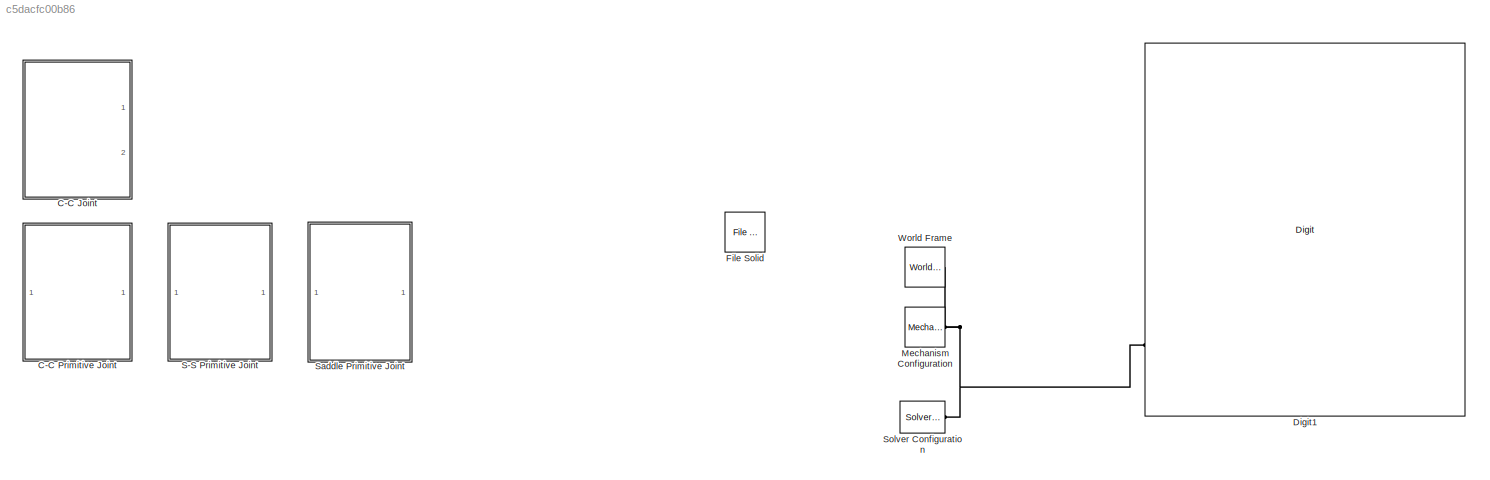
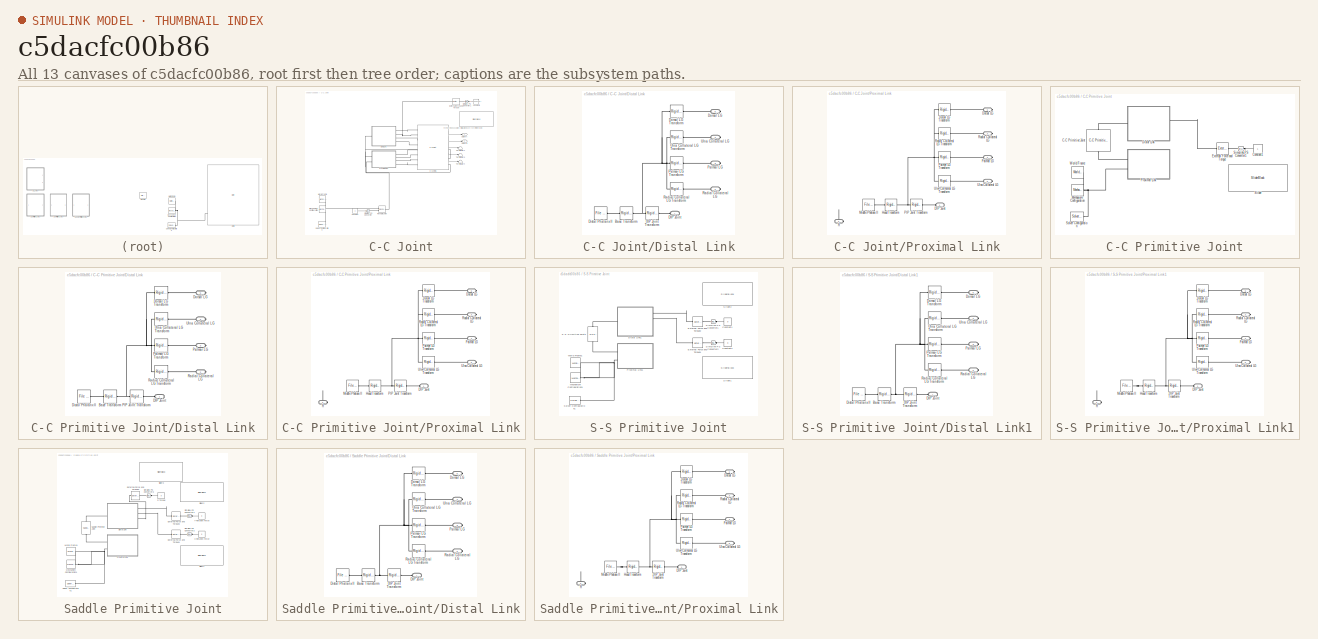
[diagram: thumbnail index - all 13 canvases of the model, root first then tree order]
MODEL slx_c5dacfc00b86
KIND model
CONFIG AbsTol = auto
CONFIG EnableMultiTasking = off
CONFIG FixedStep = auto
CONFIG MaxStep = auto
CONFIG MinStep = auto
CONFIG RelTol = 1e-3
CONFIG SampleTimeConstraint = Unconstrained
CONFIG SolverName = daessc
CONFIG StartTime = 0.0
CONFIG StopTime = 50
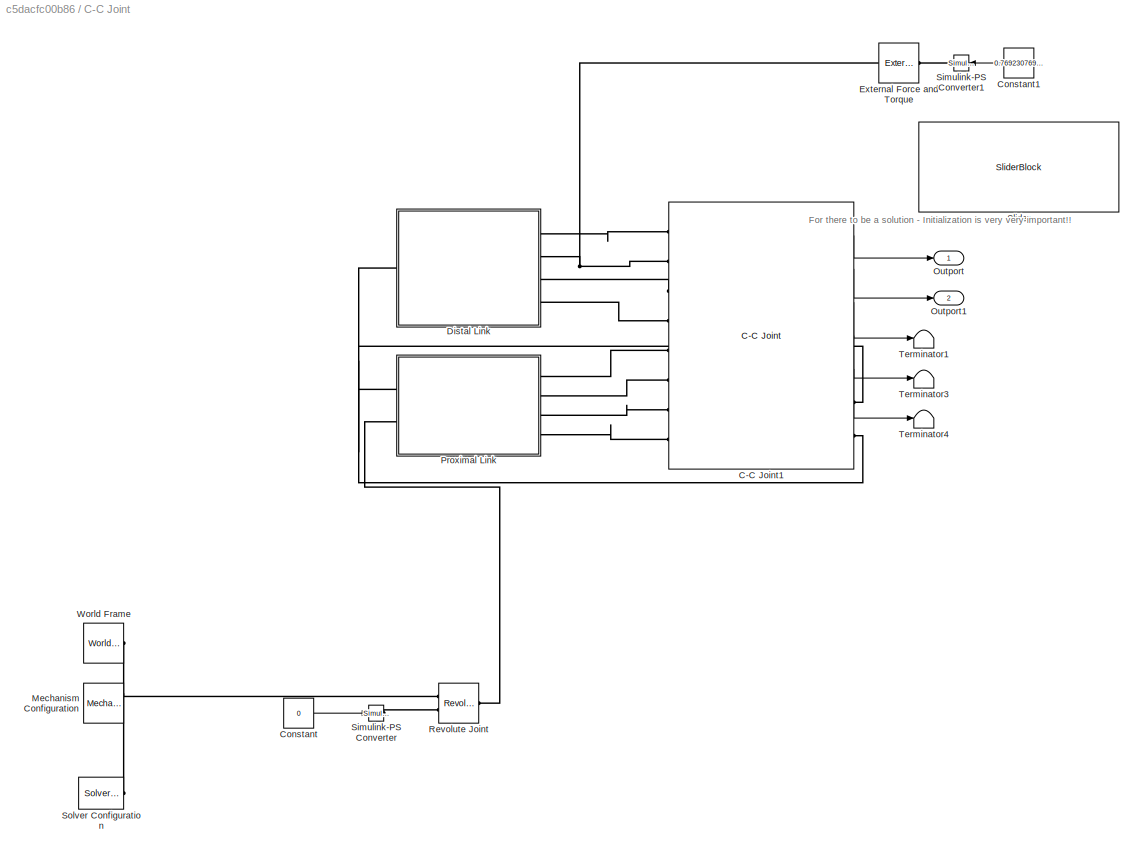
BLOCK [SubSystem] C-C Joint
  Commented = on
  Ports = [0, 2]
  RequestExecContextInheritance = off
BLOCK [Reference] C-C Joint/C-C Joint1  REF=mesh_assembly_library/C-C Joint  (lib defined in slx_494895e53eb4)
  Ports = [0, 5, 0, 0, 0, 8, 2]
  SourceBlock = mesh_assembly_library/C-C Joint
  SourceType = Cylinder in Cylinder - DARM IP Joint
BLOCK [Constant] C-C Joint/Constant
  Value = 0
BLOCK [Constant] C-C Joint/Constant1
  Value = 0.7692307692307692
BLOCK [SubSystem] C-C Joint/Distal Link
  Ports = [0, 0, 0, 0, 0, 1, 4]
  RequestExecContextInheritance = off
BLOCK [Reference] C-C Joint/Distal Link/Base Transform  REF=sm_lib/Frames and
Transforms/Rigid
Transform
  Ports = [0, 0, 0, 0, 0, 1, 1]
  SourceBlock = sm_lib/Frames and\nTransforms/Rigid\nTransform
  SourceProductBaseCode = MS
  SourceType = Rigid\nTransform
BLOCK [PMIOPort] C-C Joint/Distal Link/DIP Joint
  Side = Left
BLOCK [Reference] C-C Joint/Distal Link/DIP Joint Transform  REF=sm_lib/Frames and
Transforms/Rigid
Transform
  Ports = [0, 0, 0, 0, 0, 1, 1]
  SourceBlock = sm_lib/Frames and\nTransforms/Rigid\nTransform
  SourceProductBaseCode = MS
  SourceType = Rigid\nTransform
BLOCK [Reference] C-C Joint/Distal Link/Distal Phalanx II  REF=sm_lib/Body Elements/File Solid
  Ports = [0, 0, 0, 0, 0, 1, 1]
  SourceBlock = sm_lib/Body Elements/File Solid
  SourceProductBaseCode = MS
  SourceType = File Solid
BLOCK [PMIOPort] C-C Joint/Distal Link/Dorsal LG
  Port = 5
  Side = Right
BLOCK [Reference] C-C Joint/Distal Link/Dorsal LG Transform  REF=sm_lib/Frames and
Transforms/Rigid
Transform
  Ports = [0, 0, 0, 0, 0, 1, 1]
  SourceBlock = sm_lib/Frames and\nTransforms/Rigid\nTransform
  SourceProductBaseCode = MS
  SourceType = Rigid\nTransform
BLOCK [PMIOPort] C-C Joint/Distal Link/Palmar LG
  Port = 3
  Side = Right
BLOCK [Reference] C-C Joint/Distal Link/Palmar LG Transform  REF=sm_lib/Frames and
Transforms/Rigid
Transform
  Ports = [0, 0, 0, 0, 0, 1, 1]
  SourceBlock = sm_lib/Frames and\nTransforms/Rigid\nTransform
  SourceProductBaseCode = MS
  SourceType = Rigid\nTransform
BLOCK [PMIOPort] C-C Joint/Distal Link/Radial Collateral LG
  Port = 2
  Side = Right
BLOCK [Reference] C-C Joint/Distal Link/Radial Collateral LG Transform  REF=sm_lib/Frames and
Transforms/Rigid
Transform
  Ports = [0, 0, 0, 0, 0, 1, 1]
  SourceBlock = sm_lib/Frames and\nTransforms/Rigid\nTransform
  SourceProductBaseCode = MS
  SourceType = Rigid\nTransform
BLOCK [PMIOPort] C-C Joint/Distal Link/Ulna Collateral LG
  Port = 4
  Side = Right
BLOCK [Reference] C-C Joint/Distal Link/Ulna Collateral LG Transform  REF=sm_lib/Frames and
Transforms/Rigid
Transform
  Ports = [0, 0, 0, 0, 0, 1, 1]
  SourceBlock = sm_lib/Frames and\nTransforms/Rigid\nTransform
  SourceProductBaseCode = MS
  SourceType = Rigid\nTransform
BLOCK [Reference] C-C Joint/External Force and Torque  REF=sm_lib/Forces and
Torques/External Force
and Torque
  Ports = [0, 0, 0, 0, 0, 1, 1]
  SourceBlock = sm_lib/Forces and\nTorques/External Force\nand Torque
  SourceProductBaseCode = MS
  SourceType = External Force\nand Torque
BLOCK [Reference] C-C Joint/Mechanism Configuration  REF=sm_lib/Utilities/Mechanism
Configuration
  Ports = [0, 0, 0, 0, 0, 0, 1]
  SourceBlock = sm_lib/Utilities/Mechanism\nConfiguration
  SourceProductBaseCode = MS
  SourceType = Mechanism\nConfiguration
BLOCK [Outport] C-C Joint/Outport
BLOCK [Outport] C-C Joint/Outport1
  Port = 2
BLOCK [SubSystem] C-C Joint/Proximal Link
  Ports = [0, 0, 0, 0, 0, 2, 4]
  RequestExecContextInheritance = off
BLOCK [PMIOPort] C-C Joint/Proximal Link/DIP Joint
  Side = Left
BLOCK [PMIOPort] C-C Joint/Proximal Link/Dorsal LG
  Port = 6
  Side = Right
BLOCK [Reference] C-C Joint/Proximal Link/Dorsal LG Transform  REF=sm_lib/Frames and
Transforms/Rigid
Transform
  Ports = [0, 0, 0, 0, 0, 1, 1]
  SourceBlock = sm_lib/Frames and\nTransforms/Rigid\nTransform
  SourceProductBaseCode = MS
  SourceType = Rigid\nTransform
BLOCK [Reference] C-C Joint/Proximal Link/Head Transform  REF=sm_lib/Frames and
Transforms/Rigid
Transform
  Ports = [0, 0, 0, 0, 0, 1, 1]
  SourceBlock = sm_lib/Frames and\nTransforms/Rigid\nTransform
  SourceProductBaseCode = MS
  SourceType = Rigid\nTransform
BLOCK [Reference] C-C Joint/Proximal Link/Middle Phalanx II  REF=sm_lib/Body Elements/File Solid
  Ports = [0, 0, 0, 0, 0, 1, 1]
  SourceBlock = sm_lib/Body Elements/File Solid
  SourceProductBaseCode = MS
  SourceType = File Solid
BLOCK [Reference] C-C Joint/Proximal Link/PIP Joint Transform  REF=sm_lib/Frames and
Transforms/Rigid
Transform
  Ports = [0, 0, 0, 0, 0, 1, 1]
  SourceBlock = sm_lib/Frames and\nTransforms/Rigid\nTransform
  SourceProductBaseCode = MS
  SourceType = Rigid\nTransform
BLOCK [PMIOPort] C-C Joint/Proximal Link/Palmar LG
  Port = 4
  Side = Right
BLOCK [Reference] C-C Joint/Proximal Link/Palmar LG Transform  REF=sm_lib/Frames and
Transforms/Rigid
Transform
  Ports = [0, 0, 0, 0, 0, 1, 1]
  SourceBlock = sm_lib/Frames and\nTransforms/Rigid\nTransform
  SourceProductBaseCode = MS
  SourceType = Rigid\nTransform
BLOCK [PMIOPort] C-C Joint/Proximal Link/R
  Port = 2
  Side = Left
BLOCK [PMIOPort] C-C Joint/Proximal Link/Radial Collateral LG
  Port = 3
  Side = Right
BLOCK [Reference] C-C Joint/Proximal Link/Radial Collateral LG Transform  REF=sm_lib/Frames and
Transforms/Rigid
Transform
  Ports = [0, 0, 0, 0, 0, 1, 1]
  SourceBlock = sm_lib/Frames and\nTransforms/Rigid\nTransform
  SourceProductBaseCode = MS
  SourceType = Rigid\nTransform
BLOCK [PMIOPort] C-C Joint/Proximal Link/Ulna Collateral LG
  Port = 5
  Side = Right
BLOCK [Reference] C-C Joint/Proximal Link/Ulna Collateral LG Transform  REF=sm_lib/Frames and
Transforms/Rigid
Transform
  Ports = [0, 0, 0, 0, 0, 1, 1]
  SourceBlock = sm_lib/Frames and\nTransforms/Rigid\nTransform
  SourceProductBaseCode = MS
  SourceType = Rigid\nTransform
BLOCK [Reference] C-C Joint/Revolute Joint  REF=sm_lib/Joints/Revolute Joint
  Ports = [0, 0, 0, 0, 0, 2, 1]
  SourceBlock = sm_lib/Joints/Revolute Joint
  SourceProductBaseCode = MS
  SourceType = Revolute Joint
BLOCK [Reference] C-C Joint/Simulink-PS Converter  REF=nesl_utility/Simulink-PS
Converter
  Ports = [1, 0, 0, 0, 0, 0, 1]
  SourceBlock = nesl_utility/Simulink-PS\nConverter
  SourceProductBaseCode = PW,SS
  SourceType = Simulink-PS\nConverter
BLOCK [Reference] C-C Joint/Simulink-PS Converter1  REF=nesl_utility/Simulink-PS
Converter
  Ports = [1, 0, 0, 0, 0, 0, 1]
  SourceBlock = nesl_utility/Simulink-PS\nConverter
  SourceProductBaseCode = PW,SS
  SourceType = Simulink-PS\nConverter
BLOCK [SliderBlock] C-C Joint/Slider
  ScaleMax = 1
  ScaleMin = -5
BLOCK [Reference] C-C Joint/Solver Configuration  REF=nesl_utility/Solver
Configuration
  Ports = [0, 0, 0, 0, 0, 0, 1]
  SourceBlock = nesl_utility/Solver\nConfiguration
  SourceProductBaseCode = PW,SS
  SourceType = Solver\nConfiguration
BLOCK [Terminator] C-C Joint/Terminator1
BLOCK [Terminator] C-C Joint/Terminator3
BLOCK [Terminator] C-C Joint/Terminator4
BLOCK [Reference] C-C Joint/World Frame  REF=sm_lib/Frames and
Transforms/World Frame
  Ports = [0, 0, 0, 0, 0, 0, 1]
  SourceBlock = sm_lib/Frames and\nTransforms/World Frame
  SourceProductBaseCode = MS
  SourceType = World Frame
BLOCK [SubSystem] C-C Primitive Joint
  Commented = on
  Ports = []
  RequestExecContextInheritance = off
BLOCK [Reference] C-C Primitive Joint/C-C Primitive Joint   REF=mechanics_model_library/C-C Primitive Joint
  NameLocation = left
  Ports = [0, 0, 0, 0, 0, 1, 1]
  SourceBlock = mechanics_model_library/C-C Primitive Joint
BLOCK [Constant] C-C Primitive Joint/Constant1
BLOCK [SubSystem] C-C Primitive Joint/Distal Link
  Ports = [0, 0, 0, 0, 0, 1, 4]
  RequestExecContextInheritance = off
BLOCK [Reference] C-C Primitive Joint/Distal Link/Base Transform  REF=sm_lib/Frames and
Transforms/Rigid
Transform
  Ports = [0, 0, 0, 0, 0, 1, 1]
  SourceBlock = sm_lib/Frames and\nTransforms/Rigid\nTransform
  SourceProductBaseCode = MS
  SourceType = Rigid\nTransform
BLOCK [PMIOPort] C-C Primitive Joint/Distal Link/DIP Joint
  Side = Left
BLOCK [Reference] C-C Primitive Joint/Distal Link/Distal Phalanx II  REF=sm_lib/Body Elements/File Solid
  Ports = [0, 0, 0, 0, 0, 1, 1]
  SourceBlock = sm_lib/Body Elements/File Solid
  SourceProductBaseCode = MS
  SourceType = File Solid
BLOCK [PMIOPort] C-C Primitive Joint/Distal Link/Dorsal LG
  Port = 5
  Side = Right
BLOCK [Reference] C-C Primitive Joint/Distal Link/Dorsal LG Transform  REF=sm_lib/Frames and
Transforms/Rigid
Transform
  Ports = [0, 0, 0, 0, 0, 1, 1]
  SourceBlock = sm_lib/Frames and\nTransforms/Rigid\nTransform
  SourceProductBaseCode = MS
  SourceType = Rigid\nTransform
BLOCK [Reference] C-C Primitive Joint/Distal Link/PIP Joint Transform  REF=sm_lib/Frames and
Transforms/Rigid
Transform
  Ports = [0, 0, 0, 0, 0, 1, 1]
  SourceBlock = sm_lib/Frames and\nTransforms/Rigid\nTransform
  SourceProductBaseCode = MS
  SourceType = Rigid\nTransform
BLOCK [PMIOPort] C-C Primitive Joint/Distal Link/Palmar LG
  Port = 3
  Side = Right
BLOCK [Reference] C-C Primitive Joint/Distal Link/Palmar LG Transform  REF=sm_lib/Frames and
Transforms/Rigid
Transform
  Ports = [0, 0, 0, 0, 0, 1, 1]
  SourceBlock = sm_lib/Frames and\nTransforms/Rigid\nTransform
  SourceProductBaseCode = MS
  SourceType = Rigid\nTransform
BLOCK [PMIOPort] C-C Primitive Joint/Distal Link/Radial Collateral LG
  Port = 2
  Side = Right
BLOCK [Reference] C-C Primitive Joint/Distal Link/Radial Collateral LG Transform  REF=sm_lib/Frames and
Transforms/Rigid
Transform
  Ports = [0, 0, 0, 0, 0, 1, 1]
  SourceBlock = sm_lib/Frames and\nTransforms/Rigid\nTransform
  SourceProductBaseCode = MS
  SourceType = Rigid\nTransform
BLOCK [PMIOPort] C-C Primitive Joint/Distal Link/Ulna Collateral LG
  Port = 4
  Side = Right
BLOCK [Reference] C-C Primitive Joint/Distal Link/Ulna Collateral LG Transform  REF=sm_lib/Frames and
Transforms/Rigid
Transform
  Ports = [0, 0, 0, 0, 0, 1, 1]
  SourceBlock = sm_lib/Frames and\nTransforms/Rigid\nTransform
  SourceProductBaseCode = MS
  SourceType = Rigid\nTransform
BLOCK [Reference] C-C Primitive Joint/External Force and Torque  REF=sm_lib/Forces and
Torques/External Force
and Torque
  Ports = [0, 0, 0, 0, 0, 1, 1]
  SourceBlock = sm_lib/Forces and\nTorques/External Force\nand Torque
  SourceProductBaseCode = MS
  SourceType = External Force\nand Torque
BLOCK [Reference] C-C Primitive Joint/Mechanism Configuration  REF=sm_lib/Utilities/Mechanism
Configuration
  Ports = [0, 0, 0, 0, 0, 0, 1]
  SourceBlock = sm_lib/Utilities/Mechanism\nConfiguration
  SourceProductBaseCode = MS
  SourceType = Mechanism\nConfiguration
BLOCK [SubSystem] C-C Primitive Joint/Proximal Link
  Ports = [0, 0, 0, 0, 0, 2, 4]
  RequestExecContextInheritance = off
BLOCK [PMIOPort] C-C Primitive Joint/Proximal Link/DIP Joint
  Side = Left
BLOCK [PMIOPort] C-C Primitive Joint/Proximal Link/Dorsal LG
  Port = 6
  Side = Right
BLOCK [Reference] C-C Primitive Joint/Proximal Link/Dorsal LG Transform  REF=sm_lib/Frames and
Transforms/Rigid
Transform
  Ports = [0, 0, 0, 0, 0, 1, 1]
  SourceBlock = sm_lib/Frames and\nTransforms/Rigid\nTransform
  SourceProductBaseCode = MS
  SourceType = Rigid\nTransform
BLOCK [Reference] C-C Primitive Joint/Proximal Link/Head Transform  REF=sm_lib/Frames and
Transforms/Rigid
Transform
  Ports = [0, 0, 0, 0, 0, 1, 1]
  SourceBlock = sm_lib/Frames and\nTransforms/Rigid\nTransform
  SourceProductBaseCode = MS
  SourceType = Rigid\nTransform
BLOCK [Reference] C-C Primitive Joint/Proximal Link/Middle Phalanx II  REF=sm_lib/Body Elements/File Solid
  Ports = [0, 0, 0, 0, 0, 1, 1]
  SourceBlock = sm_lib/Body Elements/File Solid
  SourceProductBaseCode = MS
  SourceType = File Solid
BLOCK [Reference] C-C Primitive Joint/Proximal Link/PIP Joint Transform  REF=sm_lib/Frames and
Transforms/Rigid
Transform
  Ports = [0, 0, 0, 0, 0, 1, 1]
  SourceBlock = sm_lib/Frames and\nTransforms/Rigid\nTransform
  SourceProductBaseCode = MS
  SourceType = Rigid\nTransform
BLOCK [PMIOPort] C-C Primitive Joint/Proximal Link/Palmar LG
  Port = 4
  Side = Right
BLOCK [Reference] C-C Primitive Joint/Proximal Link/Palmar LG Transform  REF=sm_lib/Frames and
Transforms/Rigid
Transform
  Ports = [0, 0, 0, 0, 0, 1, 1]
  SourceBlock = sm_lib/Frames and\nTransforms/Rigid\nTransform
  SourceProductBaseCode = MS
  SourceType = Rigid\nTransform
BLOCK [PMIOPort] C-C Primitive Joint/Proximal Link/R
  Port = 2
  Side = Left
BLOCK [PMIOPort] C-C Primitive Joint/Proximal Link/Radial Collateral LG
  Port = 3
  Side = Right
BLOCK [Reference] C-C Primitive Joint/Proximal Link/Radial Collateral LG Transform  REF=sm_lib/Frames and
Transforms/Rigid
Transform
  Ports = [0, 0, 0, 0, 0, 1, 1]
  SourceBlock = sm_lib/Frames and\nTransforms/Rigid\nTransform
  SourceProductBaseCode = MS
  SourceType = Rigid\nTransform
BLOCK [PMIOPort] C-C Primitive Joint/Proximal Link/Ulna Collateral LG
  Port = 5
  Side = Right
BLOCK [Reference] C-C Primitive Joint/Proximal Link/Ulna Collateral LG Transform  REF=sm_lib/Frames and
Transforms/Rigid
Transform
  Ports = [0, 0, 0, 0, 0, 1, 1]
  SourceBlock = sm_lib/Frames and\nTransforms/Rigid\nTransform
  SourceProductBaseCode = MS
  SourceType = Rigid\nTransform
BLOCK [Reference] C-C Primitive Joint/Simulink-PS Converter1  REF=nesl_utility/Simulink-PS
Converter
  Ports = [1, 0, 0, 0, 0, 0, 1]
  SourceBlock = nesl_utility/Simulink-PS\nConverter
  SourceProductBaseCode = PW,SS
  SourceType = Simulink-PS\nConverter
BLOCK [SliderBlock] C-C Primitive Joint/Slider
  ScaleMax = 1
  ScaleMin = -5
BLOCK [Reference] C-C Primitive Joint/Solver Configuration  REF=nesl_utility/Solver
Configuration
  Ports = [0, 0, 0, 0, 0, 0, 1]
  SourceBlock = nesl_utility/Solver\nConfiguration
  SourceProductBaseCode = PW,SS
  SourceType = Solver\nConfiguration
BLOCK [Reference] C-C Primitive Joint/World Frame  REF=sm_lib/Frames and
Transforms/World Frame
  Ports = [0, 0, 0, 0, 0, 0, 1]
  SourceBlock = sm_lib/Frames and\nTransforms/World Frame
  SourceProductBaseCode = MS
  SourceType = World Frame
BLOCK [Reference] Digit1  REF=mesh_assembly_library/Digit  (lib defined in slx_494895e53eb4)
  Ports = [0, 0, 0, 0, 0, 20]
  SourceBlock = mesh_assembly_library/Digit
BLOCK [Reference] File Solid  REF=sm_lib/Body Elements/File Solid
  Commented = on
  Ports = [0, 0, 0, 0, 0, 0, 1]
  SourceBlock = sm_lib/Body Elements/File Solid
  SourceProductBaseCode = MS
  SourceType = File Solid
BLOCK [Reference] Mechanism Configuration  REF=sm_lib/Utilities/Mechanism
Configuration
  Ports = [0, 0, 0, 0, 0, 0, 1]
  SourceBlock = sm_lib/Utilities/Mechanism\nConfiguration
  SourceProductBaseCode = MS
  SourceType = Mechanism\nConfiguration
BLOCK [SubSystem] S-S Primitive Joint
  Commented = on
  Ports = []
  RequestExecContextInheritance = off
BLOCK [Constant] S-S Primitive Joint/Constant1
  Value = 0
BLOCK [Constant] S-S Primitive Joint/Constant2
  Value = 0
BLOCK [SubSystem] S-S Primitive Joint/Distal Link1
  Ports = [0, 0, 0, 0, 0, 1, 4]
  RequestExecContextInheritance = off
BLOCK [Reference] S-S Primitive Joint/Distal Link1/Base Transform  REF=sm_lib/Frames and
Transforms/Rigid
Transform
  Ports = [0, 0, 0, 0, 0, 1, 1]
  SourceBlock = sm_lib/Frames and\nTransforms/Rigid\nTransform
  SourceProductBaseCode = MS
  SourceType = Rigid\nTransform
BLOCK [PMIOPort] S-S Primitive Joint/Distal Link1/DIP Joint
  Side = Left
BLOCK [Reference] S-S Primitive Joint/Distal Link1/DIP Joint Transform  REF=sm_lib/Frames and
Transforms/Rigid
Transform
  Ports = [0, 0, 0, 0, 0, 1, 1]
  SourceBlock = sm_lib/Frames and\nTransforms/Rigid\nTransform
  SourceProductBaseCode = MS
  SourceType = Rigid\nTransform
BLOCK [Reference] S-S Primitive Joint/Distal Link1/Distal Phalanx II  REF=sm_lib/Body Elements/File Solid
  Ports = [0, 0, 0, 0, 0, 1, 1]
  SourceBlock = sm_lib/Body Elements/File Solid
  SourceProductBaseCode = MS
  SourceType = File Solid
BLOCK [PMIOPort] S-S Primitive Joint/Distal Link1/Dorsal LG
  Port = 5
  Side = Right
BLOCK [Reference] S-S Primitive Joint/Distal Link1/Dorsal LG Transform  REF=sm_lib/Frames and
Transforms/Rigid
Transform
  Ports = [0, 0, 0, 0, 0, 1, 1]
  SourceBlock = sm_lib/Frames and\nTransforms/Rigid\nTransform
  SourceProductBaseCode = MS
  SourceType = Rigid\nTransform
BLOCK [PMIOPort] S-S Primitive Joint/Distal Link1/Palmar LG
  Port = 3
  Side = Right
BLOCK [Reference] S-S Primitive Joint/Distal Link1/Palmar LG Transform  REF=sm_lib/Frames and
Transforms/Rigid
Transform
  Ports = [0, 0, 0, 0, 0, 1, 1]
  SourceBlock = sm_lib/Frames and\nTransforms/Rigid\nTransform
  SourceProductBaseCode = MS
  SourceType = Rigid\nTransform
BLOCK [PMIOPort] S-S Primitive Joint/Distal Link1/Radial Collateral LG
  Port = 2
  Side = Right
BLOCK [Reference] S-S Primitive Joint/Distal Link1/Radial Collateral LG Transform  REF=sm_lib/Frames and
Transforms/Rigid
Transform
  Ports = [0, 0, 0, 0, 0, 1, 1]
  SourceBlock = sm_lib/Frames and\nTransforms/Rigid\nTransform
  SourceProductBaseCode = MS
  SourceType = Rigid\nTransform
BLOCK [PMIOPort] S-S Primitive Joint/Distal Link1/Ulna Collateral LG
  Port = 4
  Side = Right
BLOCK [Reference] S-S Primitive Joint/Distal Link1/Ulna Collateral LG Transform  REF=sm_lib/Frames and
Transforms/Rigid
Transform
  Ports = [0, 0, 0, 0, 0, 1, 1]
  SourceBlock = sm_lib/Frames and\nTransforms/Rigid\nTransform
  SourceProductBaseCode = MS
  SourceType = Rigid\nTransform
BLOCK [Reference] S-S Primitive Joint/External Force and Torque1  REF=sm_lib/Forces and
Torques/External Force
and Torque
  Ports = [0, 0, 0, 0, 0, 1, 1]
  SourceBlock = sm_lib/Forces and\nTorques/External Force\nand Torque
  SourceProductBaseCode = MS
  SourceType = External Force\nand Torque
BLOCK [Reference] S-S Primitive Joint/External Force and Torque2  REF=sm_lib/Forces and
Torques/External Force
and Torque
  Ports = [0, 0, 0, 0, 0, 1, 1]
  SourceBlock = sm_lib/Forces and\nTorques/External Force\nand Torque
  SourceProductBaseCode = MS
  SourceType = External Force\nand Torque
BLOCK [Reference] S-S Primitive Joint/Mechanism Configuration1  REF=sm_lib/Utilities/Mechanism
Configuration
  Ports = [0, 0, 0, 0, 0, 0, 1]
  SourceBlock = sm_lib/Utilities/Mechanism\nConfiguration
  SourceProductBaseCode = MS
  SourceType = Mechanism\nConfiguration
BLOCK [SubSystem] S-S Primitive Joint/Proximal Link1
  Ports = [0, 0, 0, 0, 0, 2, 4]
  RequestExecContextInheritance = off
BLOCK [PMIOPort] S-S Primitive Joint/Proximal Link1/DIP Joint
  Side = Left
BLOCK [Reference] S-S Primitive Joint/Proximal Link1/DIP Joint Transform  REF=sm_lib/Frames and
Transforms/Rigid
Transform
  Ports = [0, 0, 0, 0, 0, 1, 1]
  SourceBlock = sm_lib/Frames and\nTransforms/Rigid\nTransform
  SourceProductBaseCode = MS
  SourceType = Rigid\nTransform
BLOCK [PMIOPort] S-S Primitive Joint/Proximal Link1/Dorsal LG
  Port = 6
  Side = Right
BLOCK [Reference] S-S Primitive Joint/Proximal Link1/Dorsal LG Transform  REF=sm_lib/Frames and
Transforms/Rigid
Transform
  Ports = [0, 0, 0, 0, 0, 1, 1]
  SourceBlock = sm_lib/Frames and\nTransforms/Rigid\nTransform
  SourceProductBaseCode = MS
  SourceType = Rigid\nTransform
BLOCK [Reference] S-S Primitive Joint/Proximal Link1/Head Transform  REF=sm_lib/Frames and
Transforms/Rigid
Transform
  Ports = [0, 0, 0, 0, 0, 1, 1]
  SourceBlock = sm_lib/Frames and\nTransforms/Rigid\nTransform
  SourceProductBaseCode = MS
  SourceType = Rigid\nTransform
BLOCK [Reference] S-S Primitive Joint/Proximal Link1/Middle Phalanx II  REF=sm_lib/Body Elements/File Solid
  Ports = [0, 0, 0, 0, 0, 1, 1]
  SourceBlock = sm_lib/Body Elements/File Solid
  SourceProductBaseCode = MS
  SourceType = File Solid
BLOCK [PMIOPort] S-S Primitive Joint/Proximal Link1/Palmar LG
  Port = 4
  Side = Right
BLOCK [Reference] S-S Primitive Joint/Proximal Link1/Palmar LG Transform  REF=sm_lib/Frames and
Transforms/Rigid
Transform
  Ports = [0, 0, 0, 0, 0, 1, 1]
  SourceBlock = sm_lib/Frames and\nTransforms/Rigid\nTransform
  SourceProductBaseCode = MS
  SourceType = Rigid\nTransform
BLOCK [PMIOPort] S-S Primitive Joint/Proximal Link1/R
  Port = 2
  Side = Left
BLOCK [PMIOPort] S-S Primitive Joint/Proximal Link1/Radial Collateral LG
  Port = 3
  Side = Right
BLOCK [Reference] S-S Primitive Joint/Proximal Link1/Radial Collateral LG Transform  REF=sm_lib/Frames and
Transforms/Rigid
Transform
  Ports = [0, 0, 0, 0, 0, 1, 1]
  SourceBlock = sm_lib/Frames and\nTransforms/Rigid\nTransform
  SourceProductBaseCode = MS
  SourceType = Rigid\nTransform
BLOCK [PMIOPort] S-S Primitive Joint/Proximal Link1/Ulna Collateral LG
  Port = 5
  Side = Right
BLOCK [Reference] S-S Primitive Joint/Proximal Link1/Ulna Collateral LG Transform  REF=sm_lib/Frames and
Transforms/Rigid
Transform
  Ports = [0, 0, 0, 0, 0, 1, 1]
  SourceBlock = sm_lib/Frames and\nTransforms/Rigid\nTransform
  SourceProductBaseCode = MS
  SourceType = Rigid\nTransform
BLOCK [Reference] S-S Primitive Joint/S-S Primitive Joint1  REF=mesh_assembly_library/S-S Primitive Joint  (lib defined in slx_494895e53eb4)
  Ports = [0, 0, 0, 0, 0, 1, 1]
  SourceBlock = mesh_assembly_library/S-S Primitive Joint
BLOCK [Reference] S-S Primitive Joint/Simulink-PS Converter1  REF=nesl_utility/Simulink-PS
Converter
  Ports = [1, 0, 0, 0, 0, 0, 1]
  SourceBlock = nesl_utility/Simulink-PS\nConverter
  SourceProductBaseCode = PW,SS
  SourceType = Simulink-PS\nConverter
BLOCK [Reference] S-S Primitive Joint/Simulink-PS Converter2  REF=nesl_utility/Simulink-PS
Converter
  Ports = [1, 0, 0, 0, 0, 0, 1]
  SourceBlock = nesl_utility/Simulink-PS\nConverter
  SourceProductBaseCode = PW,SS
  SourceType = Simulink-PS\nConverter
BLOCK [SliderBlock] S-S Primitive Joint/Slider1
  ScaleMax = 1
  ScaleMin = -1
BLOCK [SliderBlock] S-S Primitive Joint/Slider2
  ScaleMax = 1
  ScaleMin = -1
BLOCK [Reference] S-S Primitive Joint/Solver Configuration1  REF=nesl_utility/Solver
Configuration
  Ports = [0, 0, 0, 0, 0, 0, 1]
  SourceBlock = nesl_utility/Solver\nConfiguration
  SourceProductBaseCode = PW,SS
  SourceType = Solver\nConfiguration
BLOCK [Reference] S-S Primitive Joint/World Frame1  REF=sm_lib/Frames and
Transforms/World Frame
  Ports = [0, 0, 0, 0, 0, 0, 1]
  SourceBlock = sm_lib/Frames and\nTransforms/World Frame
  SourceProductBaseCode = MS
  SourceType = World Frame
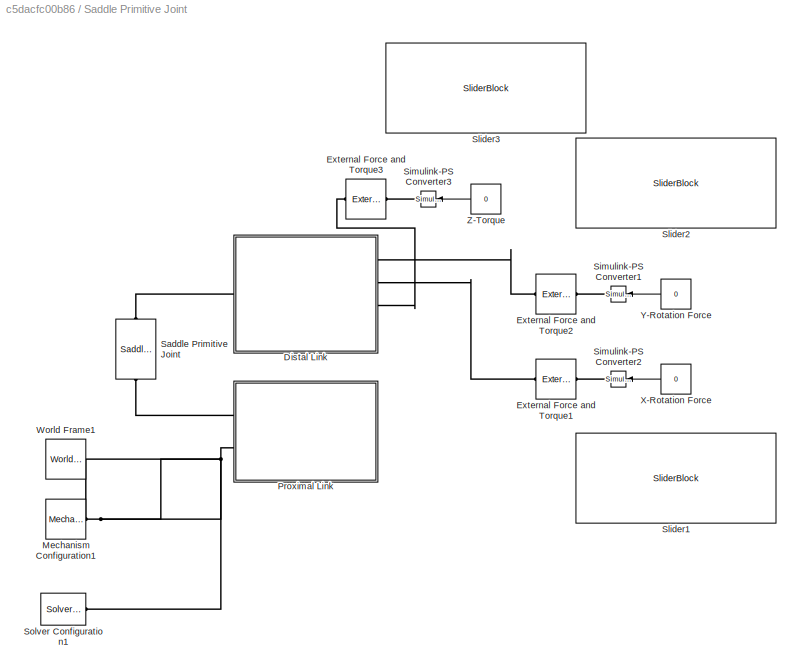
BLOCK [SubSystem] Saddle Primitive Joint
  Commented = on
  Ports = []
  RequestExecContextInheritance = off
BLOCK [SubSystem] Saddle Primitive Joint/Distal Link
  Ports = [0, 0, 0, 0, 0, 1, 4]
  RequestExecContextInheritance = off
BLOCK [Reference] Saddle Primitive Joint/Distal Link/Base Transform  REF=sm_lib/Frames and
Transforms/Rigid
Transform
  Ports = [0, 0, 0, 0, 0, 1, 1]
  SourceBlock = sm_lib/Frames and\nTransforms/Rigid\nTransform
  SourceProductBaseCode = MS
  SourceType = Rigid\nTransform
BLOCK [PMIOPort] Saddle Primitive Joint/Distal Link/DIP Joint
  Side = Left
BLOCK [Reference] Saddle Primitive Joint/Distal Link/DIP Joint Transform  REF=sm_lib/Frames and
Transforms/Rigid
Transform
  Ports = [0, 0, 0, 0, 0, 1, 1]
  SourceBlock = sm_lib/Frames and\nTransforms/Rigid\nTransform
  SourceProductBaseCode = MS
  SourceType = Rigid\nTransform
BLOCK [Reference] Saddle Primitive Joint/Distal Link/Distal Phalanx II  REF=sm_lib/Body Elements/File Solid
  Ports = [0, 0, 0, 0, 0, 1, 1]
  SourceBlock = sm_lib/Body Elements/File Solid
  SourceProductBaseCode = MS
  SourceType = File Solid
BLOCK [PMIOPort] Saddle Primitive Joint/Distal Link/Dorsal LG
  Port = 5
  Side = Right
BLOCK [Reference] Saddle Primitive Joint/Distal Link/Dorsal LG Transform  REF=sm_lib/Frames and
Transforms/Rigid
Transform
  Ports = [0, 0, 0, 0, 0, 1, 1]
  SourceBlock = sm_lib/Frames and\nTransforms/Rigid\nTransform
  SourceProductBaseCode = MS
  SourceType = Rigid\nTransform
BLOCK [PMIOPort] Saddle Primitive Joint/Distal Link/Palmar LG
  Port = 3
  Side = Right
BLOCK [Reference] Saddle Primitive Joint/Distal Link/Palmar LG Transform  REF=sm_lib/Frames and
Transforms/Rigid
Transform
  Ports = [0, 0, 0, 0, 0, 1, 1]
  SourceBlock = sm_lib/Frames and\nTransforms/Rigid\nTransform
  SourceProductBaseCode = MS
  SourceType = Rigid\nTransform
BLOCK [PMIOPort] Saddle Primitive Joint/Distal Link/Radial Collateral LG
  Port = 2
  Side = Right
BLOCK [Reference] Saddle Primitive Joint/Distal Link/Radial Collateral LG Transform  REF=sm_lib/Frames and
Transforms/Rigid
Transform
  Ports = [0, 0, 0, 0, 0, 1, 1]
  SourceBlock = sm_lib/Frames and\nTransforms/Rigid\nTransform
  SourceProductBaseCode = MS
  SourceType = Rigid\nTransform
BLOCK [PMIOPort] Saddle Primitive Joint/Distal Link/Ulna Collateral LG
  Port = 4
  Side = Right
BLOCK [Reference] Saddle Primitive Joint/Distal Link/Ulna Collateral LG Transform  REF=sm_lib/Frames and
Transforms/Rigid
Transform
  Ports = [0, 0, 0, 0, 0, 1, 1]
  SourceBlock = sm_lib/Frames and\nTransforms/Rigid\nTransform
  SourceProductBaseCode = MS
  SourceType = Rigid\nTransform
BLOCK [Reference] Saddle Primitive Joint/External Force and Torque1  REF=sm_lib/Forces and
Torques/External Force
and Torque
  Ports = [0, 0, 0, 0, 0, 1, 1]
  SourceBlock = sm_lib/Forces and\nTorques/External Force\nand Torque
  SourceProductBaseCode = MS
  SourceType = External Force\nand Torque
BLOCK [Reference] Saddle Primitive Joint/External Force and Torque2  REF=sm_lib/Forces and
Torques/External Force
and Torque
  Ports = [0, 0, 0, 0, 0, 1, 1]
  SourceBlock = sm_lib/Forces and\nTorques/External Force\nand Torque
  SourceProductBaseCode = MS
  SourceType = External Force\nand Torque
BLOCK [Reference] Saddle Primitive Joint/External Force and Torque3  REF=sm_lib/Forces and
Torques/External Force
and Torque
  Ports = [0, 0, 0, 0, 0, 1, 1]
  SourceBlock = sm_lib/Forces and\nTorques/External Force\nand Torque
  SourceProductBaseCode = MS
  SourceType = External Force\nand Torque
BLOCK [Reference] Saddle Primitive Joint/Mechanism Configuration1  REF=sm_lib/Utilities/Mechanism
Configuration
  Ports = [0, 0, 0, 0, 0, 0, 1]
  SourceBlock = sm_lib/Utilities/Mechanism\nConfiguration
  SourceProductBaseCode = MS
  SourceType = Mechanism\nConfiguration
BLOCK [SubSystem] Saddle Primitive Joint/Proximal Link
  Ports = [0, 0, 0, 0, 0, 2, 4]
  RequestExecContextInheritance = off
BLOCK [PMIOPort] Saddle Primitive Joint/Proximal Link/DIP Joint
  Side = Left
BLOCK [Reference] Saddle Primitive Joint/Proximal Link/DIP Joint Transform  REF=sm_lib/Frames and
Transforms/Rigid
Transform
  Ports = [0, 0, 0, 0, 0, 1, 1]
  SourceBlock = sm_lib/Frames and\nTransforms/Rigid\nTransform
  SourceProductBaseCode = MS
  SourceType = Rigid\nTransform
BLOCK [PMIOPort] Saddle Primitive Joint/Proximal Link/Dorsal LG
  Port = 6
  Side = Right
BLOCK [Reference] Saddle Primitive Joint/Proximal Link/Dorsal LG Transform  REF=sm_lib/Frames and
Transforms/Rigid
Transform
  Ports = [0, 0, 0, 0, 0, 1, 1]
  SourceBlock = sm_lib/Frames and\nTransforms/Rigid\nTransform
  SourceProductBaseCode = MS
  SourceType = Rigid\nTransform
BLOCK [Reference] Saddle Primitive Joint/Proximal Link/Head Transform  REF=sm_lib/Frames and
Transforms/Rigid
Transform
  Ports = [0, 0, 0, 0, 0, 1, 1]
  SourceBlock = sm_lib/Frames and\nTransforms/Rigid\nTransform
  SourceProductBaseCode = MS
  SourceType = Rigid\nTransform
BLOCK [Reference] Saddle Primitive Joint/Proximal Link/Middle Phalanx II  REF=sm_lib/Body Elements/File Solid
  Ports = [0, 0, 0, 0, 0, 1, 1]
  SourceBlock = sm_lib/Body Elements/File Solid
  SourceProductBaseCode = MS
  SourceType = File Solid
BLOCK [PMIOPort] Saddle Primitive Joint/Proximal Link/Palmar LG
  Port = 4
  Side = Right
BLOCK [Reference] Saddle Primitive Joint/Proximal Link/Palmar LG Transform  REF=sm_lib/Frames and
Transforms/Rigid
Transform
  Ports = [0, 0, 0, 0, 0, 1, 1]
  SourceBlock = sm_lib/Frames and\nTransforms/Rigid\nTransform
  SourceProductBaseCode = MS
  SourceType = Rigid\nTransform
BLOCK [PMIOPort] Saddle Primitive Joint/Proximal Link/R
  Port = 2
  Side = Left
BLOCK [PMIOPort] Saddle Primitive Joint/Proximal Link/Radial Collateral LG
  Port = 3
  Side = Right
BLOCK [Reference] Saddle Primitive Joint/Proximal Link/Radial Collateral LG Transform  REF=sm_lib/Frames and
Transforms/Rigid
Transform
  Ports = [0, 0, 0, 0, 0, 1, 1]
  SourceBlock = sm_lib/Frames and\nTransforms/Rigid\nTransform
  SourceProductBaseCode = MS
  SourceType = Rigid\nTransform
BLOCK [PMIOPort] Saddle Primitive Joint/Proximal Link/Ulna Collateral LG
  Port = 5
  Side = Right
BLOCK [Reference] Saddle Primitive Joint/Proximal Link/Ulna Collateral LG Transform  REF=sm_lib/Frames and
Transforms/Rigid
Transform
  Ports = [0, 0, 0, 0, 0, 1, 1]
  SourceBlock = sm_lib/Frames and\nTransforms/Rigid\nTransform
  SourceProductBaseCode = MS
  SourceType = Rigid\nTransform
BLOCK [Reference] Saddle Primitive Joint/Saddle Primitive Joint   REF=mechanics_model_library/Saddle Primitive Joint
  NameLocation = left
  Ports = [0, 0, 0, 0, 0, 1, 1]
  SourceBlock = mechanics_model_library/Saddle Primitive Joint
BLOCK [Reference] Saddle Primitive Joint/Simulink-PS Converter1  REF=nesl_utility/Simulink-PS
Converter
  Ports = [1, 0, 0, 0, 0, 0, 1]
  SourceBlock = nesl_utility/Simulink-PS\nConverter
  SourceProductBaseCode = PW,SS
  SourceType = Simulink-PS\nConverter
BLOCK [Reference] Saddle Primitive Joint/Simulink-PS Converter2  REF=nesl_utility/Simulink-PS
Converter
  Ports = [1, 0, 0, 0, 0, 0, 1]
  SourceBlock = nesl_utility/Simulink-PS\nConverter
  SourceProductBaseCode = PW,SS
  SourceType = Simulink-PS\nConverter
BLOCK [Reference] Saddle Primitive Joint/Simulink-PS Converter3  REF=nesl_utility/Simulink-PS
Converter
  Ports = [1, 0, 0, 0, 0, 0, 1]
  SourceBlock = nesl_utility/Simulink-PS\nConverter
  SourceProductBaseCode = PW,SS
  SourceType = Simulink-PS\nConverter
BLOCK [SliderBlock] Saddle Primitive Joint/Slider1
  ScaleMax = 1
  ScaleMin = -1
BLOCK [SliderBlock] Saddle Primitive Joint/Slider2
  ScaleMax = 1
  ScaleMin = -1
BLOCK [SliderBlock] Saddle Primitive Joint/Slider3
  ScaleMax = 1
  ScaleMin = -1
BLOCK [Reference] Saddle Primitive Joint/Solver Configuration1  REF=nesl_utility/Solver
Configuration
  Ports = [0, 0, 0, 0, 0, 0, 1]
  SourceBlock = nesl_utility/Solver\nConfiguration
  SourceProductBaseCode = PW,SS
  SourceType = Solver\nConfiguration
BLOCK [Reference] Saddle Primitive Joint/World Frame1  REF=sm_lib/Frames and
Transforms/World Frame
  Ports = [0, 0, 0, 0, 0, 0, 1]
  SourceBlock = sm_lib/Frames and\nTransforms/World Frame
  SourceProductBaseCode = MS
  SourceType = World Frame
BLOCK [Constant] Saddle Primitive Joint/X-Rotation Force
  Value = 0
BLOCK [Constant] Saddle Primitive Joint/Y-Rotation Force
  Value = 0
BLOCK [Constant] Saddle Primitive Joint/Z-Torque
  Value = 0
BLOCK [Reference] Solver Configuration  REF=nesl_utility/Solver
Configuration
  Ports = [0, 0, 0, 0, 0, 0, 1]
  SourceBlock = nesl_utility/Solver\nConfiguration
  SourceProductBaseCode = PW,SS
  SourceType = Solver\nConfiguration
BLOCK [Reference] World Frame  REF=sm_lib/Frames and
Transforms/World Frame
  Ports = [0, 0, 0, 0, 0, 0, 1]
  SourceBlock = sm_lib/Frames and\nTransforms/World Frame
  SourceProductBaseCode = MS
  SourceType = World Frame
ANNOTATION C-C Joint: For there to be a solution - Initialization is very very important!!
LINE C-C Joint/C-C Joint1:1 -> C-C Joint/Outport:1
LINE C-C Joint/C-C Joint1:2 -> C-C Joint/Outport1:1
LINE C-C Joint/C-C Joint1:3 -> C-C Joint/Terminator1:1
LINE C-C Joint/C-C Joint1:4 -> C-C Joint/Terminator3:1
LINE C-C Joint/C-C Joint1:5 -> C-C Joint/Terminator4:1
LINE C-C Joint/Constant1:1 -> C-C Joint/Simulink-PS Converter1:1
LINE C-C Joint/Constant:1 -> C-C Joint/Simulink-PS Converter:1
LINE C-C Primitive Joint/Constant1:1 -> C-C Primitive Joint/Simulink-PS Converter1:1
LINE S-S Primitive Joint/Constant1:1 -> S-S Primitive Joint/Simulink-PS Converter1:1
LINE S-S Primitive Joint/Constant2:1 -> S-S Primitive Joint/Simulink-PS Converter2:1
LINE Saddle Primitive Joint/X-Rotation Force:1 -> Saddle Primitive Joint/Simulink-PS Converter2:1
LINE Saddle Primitive Joint/Y-Rotation Force:1 -> Saddle Primitive Joint/Simulink-PS Converter1:1
LINE Saddle Primitive Joint/Z-Torque:1 -> Saddle Primitive Joint/Simulink-PS Converter3:1
PLINE C-C Joint/C-C Joint1:LConn1 -- C-C Joint/Distal Link:RConn1
PNET net1: C-C Joint/C-C Joint1:LConn2 -- C-C Joint/Distal Link:RConn2 -- C-C Joint/External Force and Torque:RConn1
PLINE C-C Joint/C-C Joint1:LConn3 -- C-C Joint/Distal Link:RConn3
PLINE C-C Joint/C-C Joint1:LConn4 -- C-C Joint/Distal Link:RConn4
PLINE C-C Joint/C-C Joint1:LConn5 -- C-C Joint/Proximal Link:RConn1
PLINE C-C Joint/C-C Joint1:LConn6 -- C-C Joint/Proximal Link:RConn2
PLINE C-C Joint/C-C Joint1:LConn7 -- C-C Joint/Proximal Link:RConn3
PLINE C-C Joint/C-C Joint1:LConn8 -- C-C Joint/Proximal Link:RConn4
PLINE C-C Joint/C-C Joint1:RConn1 -- C-C Joint/Distal Link:LConn1
PLINE C-C Joint/C-C Joint1:RConn2 -- C-C Joint/Proximal Link:LConn1
PLINE C-C Joint/Distal Link/Base Transform:LConn1 -- C-C Joint/Distal Link/Distal Phalanx II:LConn1
PNET net2: C-C Joint/Distal Link/Base Transform:RConn1 -- C-C Joint/Distal Link/DIP Joint Transform:LConn1 -- C-C Joint/Distal Link/Dorsal LG Transform:LConn1 -- C-C Joint/Distal Link/Palmar LG Transform:LConn1 -- C-C Joint/Distal Link/Radial Collateral LG Transform:LConn1 -- C-C Joint/Distal Link/Ulna Collateral LG Transform:LConn1
PLINE C-C Joint/Distal Link/DIP Joint Transform:RConn1 -- C-C Joint/Distal Link/DIP Joint:RConn1
PLINE C-C Joint/Distal Link/Dorsal LG Transform:RConn1 -- C-C Joint/Distal Link/Dorsal LG:RConn1
PLINE C-C Joint/Distal Link/Palmar LG Transform:RConn1 -- C-C Joint/Distal Link/Palmar LG:RConn1
PLINE C-C Joint/Distal Link/Radial Collateral LG Transform:RConn1 -- C-C Joint/Distal Link/Radial Collateral LG:RConn1
PLINE C-C Joint/Distal Link/Ulna Collateral LG Transform:RConn1 -- C-C Joint/Distal Link/Ulna Collateral LG:RConn1
PLINE C-C Joint/External Force and Torque:LConn1 -- C-C Joint/Simulink-PS Converter1:RConn1
PNET net3: C-C Joint/Mechanism Configuration:RConn1 -- C-C Joint/Revolute Joint:LConn1 -- C-C Joint/Solver Configuration:RConn1 -- C-C Joint/World Frame:RConn1
PLINE C-C Joint/Proximal Link/DIP Joint:RConn1 -- C-C Joint/Proximal Link/PIP Joint Transform:RConn1
PNET net4: C-C Joint/Proximal Link/Dorsal LG Transform:LConn1 -- C-C Joint/Proximal Link/Head Transform:RConn1 -- C-C Joint/Proximal Link/PIP Joint Transform:LConn1 -- C-C Joint/Proximal Link/Palmar LG Transform:LConn1 -- C-C Joint/Proximal Link/Radial Collateral LG Transform:LConn1 -- C-C Joint/Proximal Link/Ulna Collateral LG Transform:LConn1
PLINE C-C Joint/Proximal Link/Dorsal LG Transform:RConn1 -- C-C Joint/Proximal Link/Dorsal LG:RConn1
PNET net5: C-C Joint/Proximal Link/Head Transform:LConn1 -- C-C Joint/Proximal Link/Middle Phalanx II:LConn1 -- C-C Joint/Proximal Link/R:RConn1
PLINE C-C Joint/Proximal Link/Palmar LG Transform:RConn1 -- C-C Joint/Proximal Link/Palmar LG:RConn1
PLINE C-C Joint/Proximal Link/Radial Collateral LG Transform:RConn1 -- C-C Joint/Proximal Link/Radial Collateral LG:RConn1
PLINE C-C Joint/Proximal Link/Ulna Collateral LG Transform:RConn1 -- C-C Joint/Proximal Link/Ulna Collateral LG:RConn1
PLINE C-C Joint/Proximal Link:LConn2 -- C-C Joint/Revolute Joint:RConn1
PLINE C-C Joint/Revolute Joint:LConn2 -- C-C Joint/Simulink-PS Converter:RConn1
PLINE C-C Primitive Joint/C-C Primitive Joint :LConn1 -- C-C Primitive Joint/Proximal Link:LConn1
PLINE C-C Primitive Joint/C-C Primitive Joint :RConn1 -- C-C Primitive Joint/Distal Link:LConn1
PLINE C-C Primitive Joint/Distal Link/Base Transform:LConn1 -- C-C Primitive Joint/Distal Link/Distal Phalanx II:LConn1
PNET net6: C-C Primitive Joint/Distal Link/Base Transform:RConn1 -- C-C Primitive Joint/Distal Link/Dorsal LG Transform:LConn1 -- C-C Primitive Joint/Distal Link/PIP Joint Transform:LConn1 -- C-C Primitive Joint/Distal Link/Palmar LG Transform:LConn1 -- C-C Primitive Joint/Distal Link/Radial Collateral LG Transform:LConn1 -- C-C Primitive Joint/Distal Link/Ulna Collateral LG Transform:LConn1
PLINE C-C Primitive Joint/Distal Link/DIP Joint:RConn1 -- C-C Primitive Joint/Distal Link/PIP Joint Transform:RConn1
PLINE C-C Primitive Joint/Distal Link/Dorsal LG Transform:RConn1 -- C-C Primitive Joint/Distal Link/Dorsal LG:RConn1
PLINE C-C Primitive Joint/Distal Link/Palmar LG Transform:RConn1 -- C-C Primitive Joint/Distal Link/Palmar LG:RConn1
PLINE C-C Primitive Joint/Distal Link/Radial Collateral LG Transform:RConn1 -- C-C Primitive Joint/Distal Link/Radial Collateral LG:RConn1
PLINE C-C Primitive Joint/Distal Link/Ulna Collateral LG Transform:RConn1 -- C-C Primitive Joint/Distal Link/Ulna Collateral LG:RConn1
PLINE C-C Primitive Joint/Distal Link:RConn2 -- C-C Primitive Joint/External Force and Torque:RConn1
PLINE C-C Primitive Joint/External Force and Torque:LConn1 -- C-C Primitive Joint/Simulink-PS Converter1:RConn1
PNET net7: C-C Primitive Joint/Mechanism Configuration:RConn1 -- C-C Primitive Joint/Proximal Link:LConn2 -- C-C Primitive Joint/Solver Configuration:RConn1 -- C-C Primitive Joint/World Frame:RConn1
PLINE C-C Primitive Joint/Proximal Link/DIP Joint:RConn1 -- C-C Primitive Joint/Proximal Link/PIP Joint Transform:RConn1
PNET net8: C-C Primitive Joint/Proximal Link/Dorsal LG Transform:LConn1 -- C-C Primitive Joint/Proximal Link/Head Transform:RConn1 -- C-C Primitive Joint/Proximal Link/PIP Joint Transform:LConn1 -- C-C Primitive Joint/Proximal Link/Palmar LG Transform:LConn1 -- C-C Primitive Joint/Proximal Link/Radial Collateral LG Transform:LConn1 -- C-C Primitive Joint/Proximal Link/Ulna Collateral LG Transform:LConn1
PLINE C-C Primitive Joint/Proximal Link/Dorsal LG Transform:RConn1 -- C-C Primitive Joint/Proximal Link/Dorsal LG:RConn1
PNET net9: C-C Primitive Joint/Proximal Link/Head Transform:LConn1 -- C-C Primitive Joint/Proximal Link/Middle Phalanx II:LConn1 -- C-C Primitive Joint/Proximal Link/R:RConn1
PLINE C-C Primitive Joint/Proximal Link/Palmar LG Transform:RConn1 -- C-C Primitive Joint/Proximal Link/Palmar LG:RConn1
PLINE C-C Primitive Joint/Proximal Link/Radial Collateral LG Transform:RConn1 -- C-C Primitive Joint/Proximal Link/Radial Collateral LG:RConn1
PLINE C-C Primitive Joint/Proximal Link/Ulna Collateral LG Transform:RConn1 -- C-C Primitive Joint/Proximal Link/Ulna Collateral LG:RConn1
PNET net10: Digit1:LConn17 -- Mechanism Configuration:RConn1 -- Solver Configuration:RConn1 -- World Frame:RConn1
PLINE S-S Primitive Joint/Distal Link1/Base Transform:LConn1 -- S-S Primitive Joint/Distal Link1/Distal Phalanx II:LConn1
PNET net11: S-S Primitive Joint/Distal Link1/Base Transform:RConn1 -- S-S Primitive Joint/Distal Link1/DIP Joint Transform:LConn1 -- S-S Primitive Joint/Distal Link1/Dorsal LG Transform:LConn1 -- S-S Primitive Joint/Distal Link1/Palmar LG Transform:LConn1 -- S-S Primitive Joint/Distal Link1/Radial Collateral LG Transform:LConn1 -- S-S Primitive Joint/Distal Link1/Ulna Collateral LG Transform:LConn1
PLINE S-S Primitive Joint/Distal Link1/DIP Joint Transform:RConn1 -- S-S Primitive Joint/Distal Link1/DIP Joint:RConn1
PLINE S-S Primitive Joint/Distal Link1/Dorsal LG Transform:RConn1 -- S-S Primitive Joint/Distal Link1/Dorsal LG:RConn1
PLINE S-S Primitive Joint/Distal Link1/Palmar LG Transform:RConn1 -- S-S Primitive Joint/Distal Link1/Palmar LG:RConn1
PLINE S-S Primitive Joint/Distal Link1/Radial Collateral LG Transform:RConn1 -- S-S Primitive Joint/Distal Link1/Radial Collateral LG:RConn1
PLINE S-S Primitive Joint/Distal Link1/Ulna Collateral LG Transform:RConn1 -- S-S Primitive Joint/Distal Link1/Ulna Collateral LG:RConn1
PLINE S-S Primitive Joint/Distal Link1:LConn1 -- S-S Primitive Joint/S-S Primitive Joint1:RConn1
PLINE S-S Primitive Joint/Distal Link1:RConn1 -- S-S Primitive Joint/External Force and Torque2:RConn1
PLINE S-S Primitive Joint/Distal Link1:RConn2 -- S-S Primitive Joint/External Force and Torque1:RConn1
PLINE S-S Primitive Joint/External Force and Torque1:LConn1 -- S-S Primitive Joint/Simulink-PS Converter2:RConn1
PLINE S-S Primitive Joint/External Force and Torque2:LConn1 -- S-S Primitive Joint/Simulink-PS Converter1:RConn1
PNET net12: S-S Primitive Joint/Mechanism Configuration1:RConn1 -- S-S Primitive Joint/Proximal Link1:LConn2 -- S-S Primitive Joint/Solver Configuration1:RConn1 -- S-S Primitive Joint/World Frame1:RConn1
PNET net13: S-S Primitive Joint/Proximal Link1/DIP Joint Transform:LConn1 -- S-S Primitive Joint/Proximal Link1/Dorsal LG Transform:LConn1 -- S-S Primitive Joint/Proximal Link1/Head Transform:RConn1 -- S-S Primitive Joint/Proximal Link1/Palmar LG Transform:LConn1 -- S-S Primitive Joint/Proximal Link1/Radial Collateral LG Transform:LConn1 -- S-S Primitive Joint/Proximal Link1/Ulna Collateral LG Transform:LConn1
PLINE S-S Primitive Joint/Proximal Link1/DIP Joint Transform:RConn1 -- S-S Primitive Joint/Proximal Link1/DIP Joint:RConn1
PLINE S-S Primitive Joint/Proximal Link1/Dorsal LG Transform:RConn1 -- S-S Primitive Joint/Proximal Link1/Dorsal LG:RConn1
PNET net14: S-S Primitive Joint/Proximal Link1/Head Transform:LConn1 -- S-S Primitive Joint/Proximal Link1/Middle Phalanx II:LConn1 -- S-S Primitive Joint/Proximal Link1/R:RConn1
PLINE S-S Primitive Joint/Proximal Link1/Palmar LG Transform:RConn1 -- S-S Primitive Joint/Proximal Link1/Palmar LG:RConn1
PLINE S-S Primitive Joint/Proximal Link1/Radial Collateral LG Transform:RConn1 -- S-S Primitive Joint/Proximal Link1/Radial Collateral LG:RConn1
PLINE S-S Primitive Joint/Proximal Link1/Ulna Collateral LG Transform:RConn1 -- S-S Primitive Joint/Proximal Link1/Ulna Collateral LG:RConn1
PLINE S-S Primitive Joint/Proximal Link1:LConn1 -- S-S Primitive Joint/S-S Primitive Joint1:LConn1
PLINE Saddle Primitive Joint/Distal Link/Base Transform:LConn1 -- Saddle Primitive Joint/Distal Link/Distal Phalanx II:LConn1
PNET net15: Saddle Primitive Joint/Distal Link/Base Transform:RConn1 -- Saddle Primitive Joint/Distal Link/DIP Joint Transform:LConn1 -- Saddle Primitive Joint/Distal Link/Dorsal LG Transform:LConn1 -- Saddle Primitive Joint/Distal Link/Palmar LG Transform:LConn1 -- Saddle Primitive Joint/Distal Link/Radial Collateral LG Transform:LConn1 -- Saddle Primitive Joint/Distal Link/Ulna Collateral LG Transform:LConn1
PLINE Saddle Primitive Joint/Distal Link/DIP Joint Transform:RConn1 -- Saddle Primitive Joint/Distal Link/DIP Joint:RConn1
PLINE Saddle Primitive Joint/Distal Link/Dorsal LG Transform:RConn1 -- Saddle Primitive Joint/Distal Link/Dorsal LG:RConn1
PLINE Saddle Primitive Joint/Distal Link/Palmar LG Transform:RConn1 -- Saddle Primitive Joint/Distal Link/Palmar LG:RConn1
PLINE Saddle Primitive Joint/Distal Link/Radial Collateral LG Transform:RConn1 -- Saddle Primitive Joint/Distal Link/Radial Collateral LG:RConn1
PLINE Saddle Primitive Joint/Distal Link/Ulna Collateral LG Transform:RConn1 -- Saddle Primitive Joint/Distal Link/Ulna Collateral LG:RConn1
PLINE Saddle Primitive Joint/Distal Link:LConn1 -- Saddle Primitive Joint/Saddle Primitive Joint :RConn1
PLINE Saddle Primitive Joint/Distal Link:RConn1 -- Saddle Primitive Joint/External Force and Torque2:RConn1
PLINE Saddle Primitive Joint/Distal Link:RConn2 -- Saddle Primitive Joint/External Force and Torque1:RConn1
PLINE Saddle Primitive Joint/Distal Link:RConn3 -- Saddle Primitive Joint/External Force and Torque3:RConn1
PLINE Saddle Primitive Joint/External Force and Torque1:LConn1 -- Saddle Primitive Joint/Simulink-PS Converter2:RConn1
PLINE Saddle Primitive Joint/External Force and Torque2:LConn1 -- Saddle Primitive Joint/Simulink-PS Converter1:RConn1
PLINE Saddle Primitive Joint/External Force and Torque3:LConn1 -- Saddle Primitive Joint/Simulink-PS Converter3:RConn1
PNET net16: Saddle Primitive Joint/Mechanism Configuration1:RConn1 -- Saddle Primitive Joint/Proximal Link:LConn2 -- Saddle Primitive Joint/Solver Configuration1:RConn1 -- Saddle Primitive Joint/World Frame1:RConn1
PNET net17: Saddle Primitive Joint/Proximal Link/DIP Joint Transform:LConn1 -- Saddle Primitive Joint/Proximal Link/Dorsal LG Transform:LConn1 -- Saddle Primitive Joint/Proximal Link/Head Transform:RConn1 -- Saddle Primitive Joint/Proximal Link/Palmar LG Transform:LConn1 -- Saddle Primitive Joint/Proximal Link/Radial Collateral LG Transform:LConn1 -- Saddle Primitive Joint/Proximal Link/Ulna Collateral LG Transform:LConn1
PLINE Saddle Primitive Joint/Proximal Link/DIP Joint Transform:RConn1 -- Saddle Primitive Joint/Proximal Link/DIP Joint:RConn1
PLINE Saddle Primitive Joint/Proximal Link/Dorsal LG Transform:RConn1 -- Saddle Primitive Joint/Proximal Link/Dorsal LG:RConn1
PNET net18: Saddle Primitive Joint/Proximal Link/Head Transform:LConn1 -- Saddle Primitive Joint/Proximal Link/Middle Phalanx II:LConn1 -- Saddle Primitive Joint/Proximal Link/R:RConn1
PLINE Saddle Primitive Joint/Proximal Link/Palmar LG Transform:RConn1 -- Saddle Primitive Joint/Proximal Link/Palmar LG:RConn1
PLINE Saddle Primitive Joint/Proximal Link/Radial Collateral LG Transform:RConn1 -- Saddle Primitive Joint/Proximal Link/Radial Collateral LG:RConn1
PLINE Saddle Primitive Joint/Proximal Link/Ulna Collateral LG Transform:RConn1 -- Saddle Primitive Joint/Proximal Link/Ulna Collateral LG:RConn1
PLINE Saddle Primitive Joint/Proximal Link:LConn1 -- Saddle Primitive Joint/Saddle Primitive Joint :LConn1
note: PNET lines group multi-terminal physical nets as a canonical sorted terminal list (undirected conserving connections); 2-terminal nets keep the pairwise PLINE form
